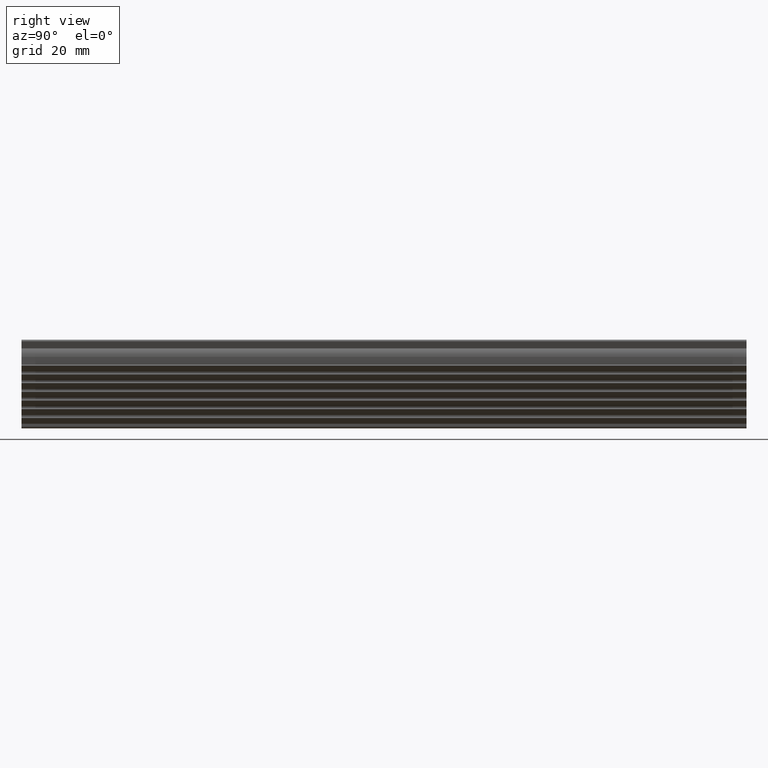
[diagram: clean part render]
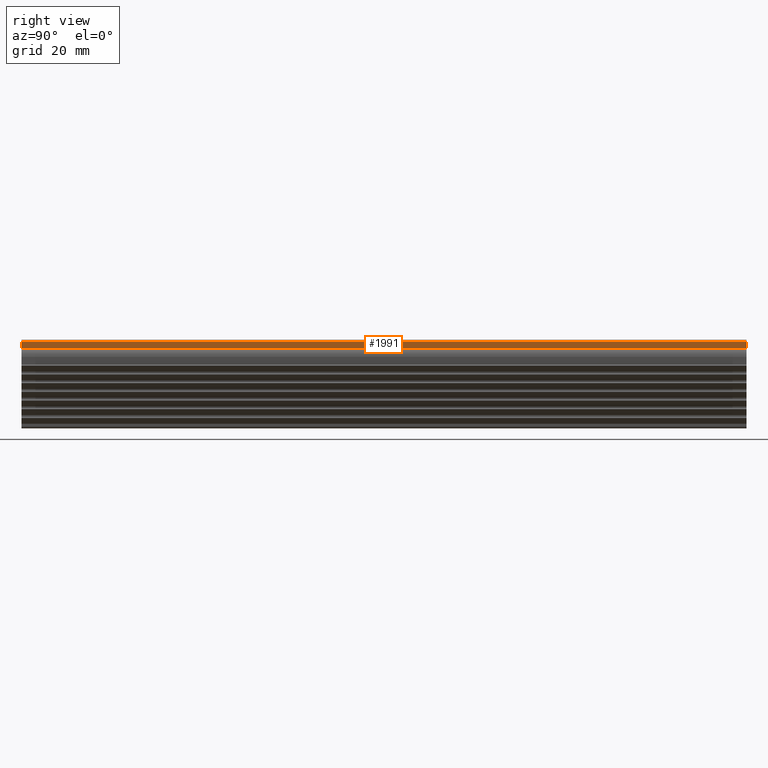
[diagram: same view with one face highlighted and labeled with its STEP entity id]
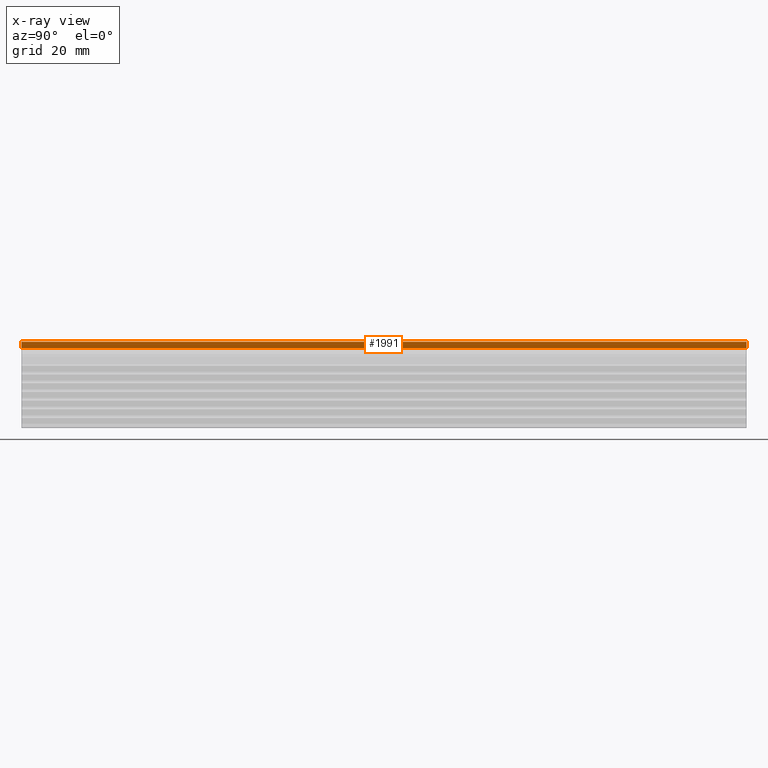
[diagram: x-ray of the same camera — body ghosted, the highlighted face saturated]
A machine part, right view. The second image highlights one B-rep face of the part: STEP entity #1991.
The next image is the same camera in x-ray: the body ghosted, the highlighted face saturated — about 0% of this face is hidden behind the body in this view.
In plain terms, the highlighted face is a freeform B-spline surface patch.
Its self-contained STEP definition (entity closure, byte-faithful):
#687=CARTESIAN_POINT('',(3.006638285227810,0.0,-1.007077234832750));
#688=VERTEX_POINT('',#687);
#702=CARTESIAN_POINT('',(3.482962913144560,0.0,0.770590477448820));
#703=VERTEX_POINT('',#702);
#704=CARTESIAN_POINT('',(3.482962913144560,0.0,0.770590477448820));
#705=CARTESIAN_POINT('',(3.006638285227810,0.0,-1.007077234832750));
#706=QUASI_UNIFORM_CURVE('',1,(#704,#705),.UNSPECIFIED.,.F.,.U.);
#707=EDGE_CURVE('',#703,#688,#706,.T.);
#943=CARTESIAN_POINT('',(3.482962913144560,200.0,0.770590477448820));
#944=VERTEX_POINT('',#943);
#960=CARTESIAN_POINT('',(3.006638285227810,200.0,-1.007077234832750));
#961=VERTEX_POINT('',#960);
#962=CARTESIAN_POINT('',(3.482962913144560,200.0,0.770590477448820));
#963=CARTESIAN_POINT('',(3.006638285227810,200.0,-1.007077234832750));
#964=QUASI_UNIFORM_CURVE('',1,(#962,#963),.UNSPECIFIED.,.F.,.U.);
#965=EDGE_CURVE('',#944,#961,#964,.T.);
#1966=CARTESIAN_POINT('',(3.482962913144560,200.0,0.770590477448820));
#1967=CARTESIAN_POINT('',(3.482962913144560,0.0,0.770590477448820));
#1968=QUASI_UNIFORM_CURVE('',1,(#1966,#1967),.UNSPECIFIED.,.F.,.U.);
#1969=EDGE_CURVE('',#944,#703,#1968,.T.);
#1976=CARTESIAN_POINT('',(2.982845875457971,-9.989999612361183,-1.095871716928277));
#1977=CARTESIAN_POINT('',(3.506755339949060,-9.989999612361183,0.859385023118708));
#1978=CARTESIAN_POINT('',(2.982845875457971,209.990004976779200,-1.095871716928277));
#1979=CARTESIAN_POINT('',(3.506755339949060,209.990004976779200,0.859385023118708));
#1980=B_SPLINE_SURFACE_WITH_KNOTS('',1,1,((#1976,#1978),(#1977,#1979)),.UNSPECIFIED.,.F.,.F.,.U.,(2,2),(2,2),(0.0,2.024230729556910),(0.0,219.980004589140410),.UNSPECIFIED.);
#1981=ORIENTED_EDGE('',*,*,#707,.T.);
#1982=CARTESIAN_POINT('',(3.006638285227810,200.0,-1.007077234832750));
#1983=CARTESIAN_POINT('',(3.006638285227810,0.0,-1.007077234832750));
#1984=QUASI_UNIFORM_CURVE('',1,(#1982,#1983),.UNSPECIFIED.,.F.,.U.);
#1985=EDGE_CURVE('',#961,#688,#1984,.T.);
#1986=ORIENTED_EDGE('',*,*,#1985,.F.);
#1987=ORIENTED_EDGE('',*,*,#965,.F.);
#1988=ORIENTED_EDGE('',*,*,#1969,.T.);
#1989=EDGE_LOOP('',(#1981,#1986,#1987,#1988));
#1990=FACE_OUTER_BOUND('',#1989,.T.);
#1991=ADVANCED_FACE('',(#1990),#1980,.F.);